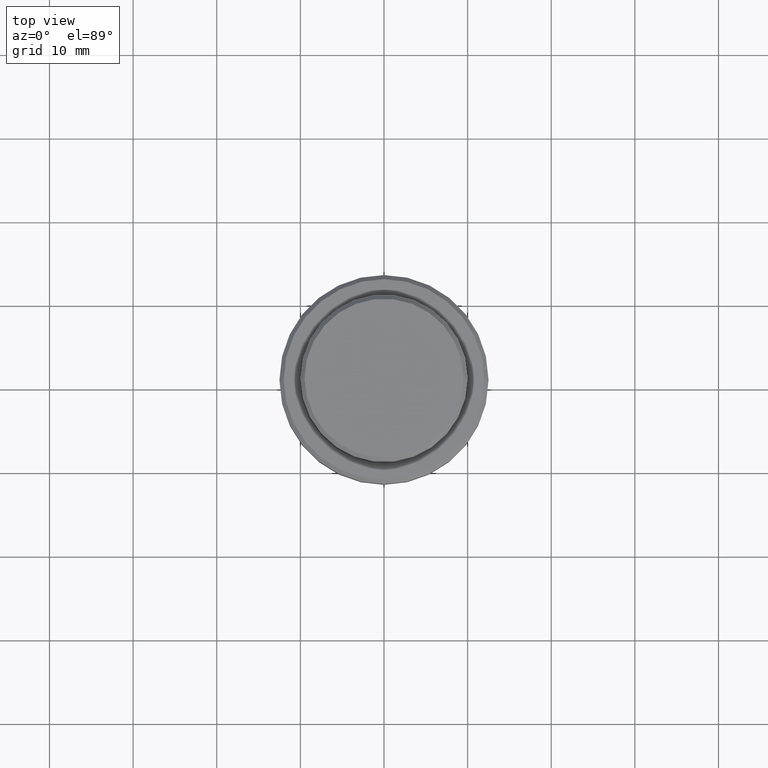
[diagram: clean part render]
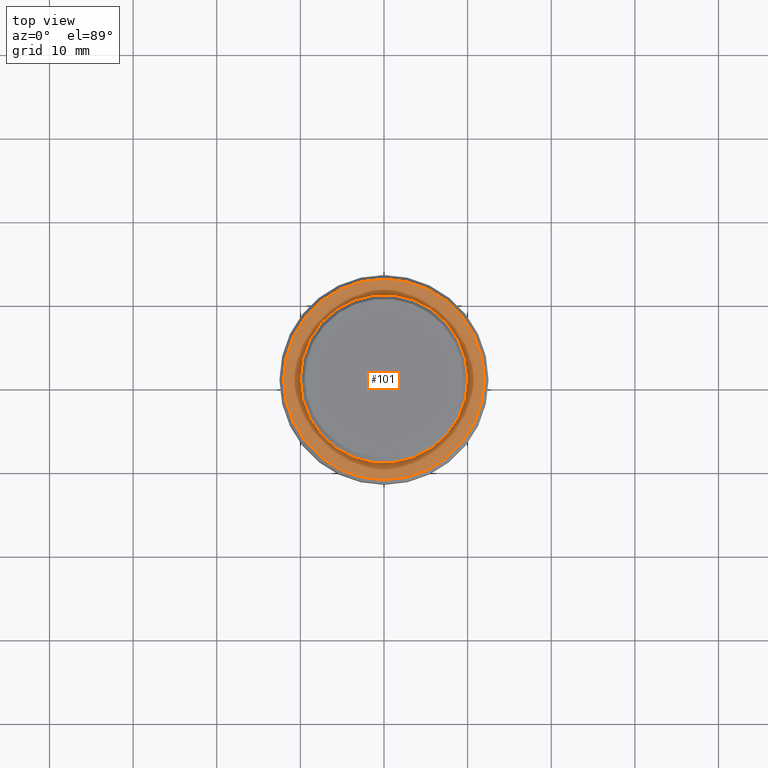
[diagram: same view with one face highlighted and labeled with its STEP entity id]
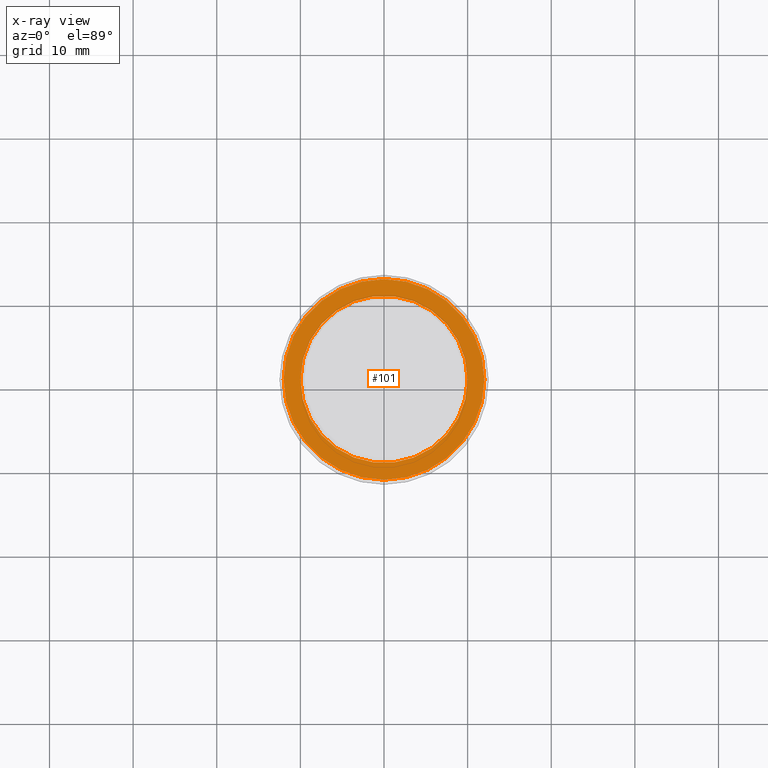
[diagram: x-ray of the same camera — body ghosted, the highlighted face saturated]
A machine part, top view. The second image highlights one B-rep face of the part: STEP entity #101.
The next image is the same camera in x-ray: the body ghosted, the highlighted face saturated — about 0% of this face is hidden behind the body in this view.
In plain terms, the highlighted planar face has unit normal (0, -0, 1).
Its self-contained STEP definition (entity closure, byte-faithful):
#60 = DIRECTION ( 'NONE',  ( 0.000000000000000000, 0.000000000000000000, -1.000000000000000000 ) ) ;
#101 = ADVANCED_FACE ( 'NONE', ( #499, #606 ), #1150, .T. ) ;
#149 = EDGE_LOOP ( 'NONE', ( #590, #686 ) ) ;
#196 = VERTEX_POINT ( 'NONE', #521 ) ;
#199 = DIRECTION ( 'NONE',  ( 1.000000000000000000, 0.000000000000000000, 0.000000000000000000 ) ) ;
#238 = VERTEX_POINT ( 'NONE', #1136 ) ;
#280 = CARTESIAN_POINT ( 'NONE',  ( 0.000000000000000000, 9.499999999999992895, -9.000000000000000000 ) ) ;
#282 = CARTESIAN_POINT ( 'NONE',  ( 0.000000000000000000, 0.000000000000000000, -9.000000000000000000 ) ) ;
#310 = AXIS2_PLACEMENT_3D ( 'NONE', #280, #613, #505 ) ;
#414 = CARTESIAN_POINT ( 'NONE',  ( 12.00000000000001066, 1.500192328955508326E-15, -9.000000000000000000 ) ) ;
#417 = ORIENTED_EDGE ( 'NONE', *, *, #761, .T. ) ;
#446 = VERTEX_POINT ( 'NONE', #1168 ) ;
#457 = AXIS2_PLACEMENT_3D ( 'NONE', #282, #1381, #1363 ) ;
#464 = EDGE_CURVE ( 'NONE', #238, #196, #1056, .T. ) ;
#483 = CIRCLE ( 'NONE', #457, 12.00000000000001066 ) ;
#484 = AXIS2_PLACEMENT_3D ( 'NONE', #936, #60, #837 ) ;
#499 = FACE_OUTER_BOUND ( 'NONE', #1130, .T. ) ;
#505 = DIRECTION ( 'NONE',  ( 1.000000000000000000, 0.000000000000000000, 0.000000000000000000 ) ) ;
#521 = CARTESIAN_POINT ( 'NONE',  ( -9.999999999999992895, 1.224646799147352468E-15, -9.000000000000000000 ) ) ;
#550 = EDGE_CURVE ( 'NONE', #1354, #446, #777, .T. ) ;
#590 = ORIENTED_EDGE ( 'NONE', *, *, #464, .T. ) ;
#606 = FACE_BOUND ( 'NONE', #149, .T. ) ;
#613 = DIRECTION ( 'NONE',  ( 0.000000000000000000, -0.000000000000000000, 1.000000000000000000 ) ) ;
#665 = CIRCLE ( 'NONE', #484, 9.999999999999992895 ) ;
#686 = ORIENTED_EDGE ( 'NONE', *, *, #866, .T. ) ;
#761 = EDGE_CURVE ( 'NONE', #446, #1354, #483, .T. ) ;
#777 = CIRCLE ( 'NONE', #1236, 12.00000000000001066 ) ;
#807 = ORIENTED_EDGE ( 'NONE', *, *, #550, .T. ) ;
#837 = DIRECTION ( 'NONE',  ( 1.000000000000000000, 0.000000000000000000, 0.000000000000000000 ) ) ;
#866 = EDGE_CURVE ( 'NONE', #196, #238, #665, .T. ) ;
#936 = CARTESIAN_POINT ( 'NONE',  ( 0.000000000000000000, 0.000000000000000000, -9.000000000000000000 ) ) ;
#958 = CARTESIAN_POINT ( 'NONE',  ( 0.000000000000000000, 0.000000000000000000, -9.000000000000000000 ) ) ;
#980 = DIRECTION ( 'NONE',  ( -0.000000000000000000, -0.000000000000000000, 1.000000000000000000 ) ) ;
#1056 = CIRCLE ( 'NONE', #1260, 9.999999999999992895 ) ;
#1130 = EDGE_LOOP ( 'NONE', ( #417, #807 ) ) ;
#1136 = CARTESIAN_POINT ( 'NONE',  ( 9.999999999999992895, 0.000000000000000000, -9.000000000000000000 ) ) ;
#1150 = PLANE ( 'NONE',  #310 ) ;
#1168 = CARTESIAN_POINT ( 'NONE',  ( -12.00000000000001066, 0.000000000000000000, -9.000000000000000000 ) ) ;
#1182 = CARTESIAN_POINT ( 'NONE',  ( 0.000000000000000000, 0.000000000000000000, -9.000000000000000000 ) ) ;
#1236 = AXIS2_PLACEMENT_3D ( 'NONE', #1182, #980, #199 ) ;
#1260 = AXIS2_PLACEMENT_3D ( 'NONE', #958, #1266, #1261 ) ;
#1261 = DIRECTION ( 'NONE',  ( 1.000000000000000000, 0.000000000000000000, 0.000000000000000000 ) ) ;
#1266 = DIRECTION ( 'NONE',  ( 0.000000000000000000, 0.000000000000000000, -1.000000000000000000 ) ) ;
#1354 = VERTEX_POINT ( 'NONE', #414 ) ;
#1363 = DIRECTION ( 'NONE',  ( 1.000000000000000000, 0.000000000000000000, 0.000000000000000000 ) ) ;
#1381 = DIRECTION ( 'NONE',  ( -0.000000000000000000, -0.000000000000000000, 1.000000000000000000 ) ) ;